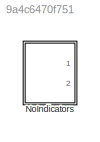
MODEL slx_9a4c6470f751
KIND library
CONFIG AbsTol = auto
CONFIG FixedStep = auto
CONFIG MaxStep = auto
CONFIG MinStep = auto
CONFIG RelTol = 1e-3
CONFIG SampleTimeConstraint = Unconstrained
CONFIG Solver = ode45
CONFIG SolverMode = Auto
CONFIG SolverName = ode45
CONFIG StartTime = 0.0
CONFIG StopTime = 10.0
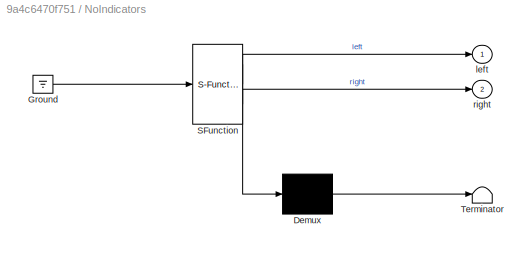
BLOCK [SubSystem] NoIndicators
  ErrorFcn = Stateflow.Translate.translate
  PermitHierarchicalResolution = ExplicitOnly
  Ports = [0, 2]
  RequestExecContextInheritance = off
  SFBlockType = Chart
  TreatAsAtomicUnit = on
BLOCK [Demux] NoIndicators/ Demux 
  Outputs = 1
  Ports = [1, 1]
BLOCK [Ground] NoIndicators/ Ground 
BLOCK [S-Function] NoIndicators/ SFunction 
  FunctionName = sf_sfun
  PortCounts = [1 3]
  Ports = [1, 3]
  Tag = Stateflow S-Function NoIndicators 5
BLOCK [Terminator] NoIndicators/ Terminator 
BLOCK [Outport] NoIndicators/left
  IconDisplay = Port number
BLOCK [Outport] NoIndicators/right
  IconDisplay = Port number
  Port = 2
CHART NoIndicators states=1 transitions=1
  STATE_LABEL 'Off\nentry:\nleft=0; right=0'
